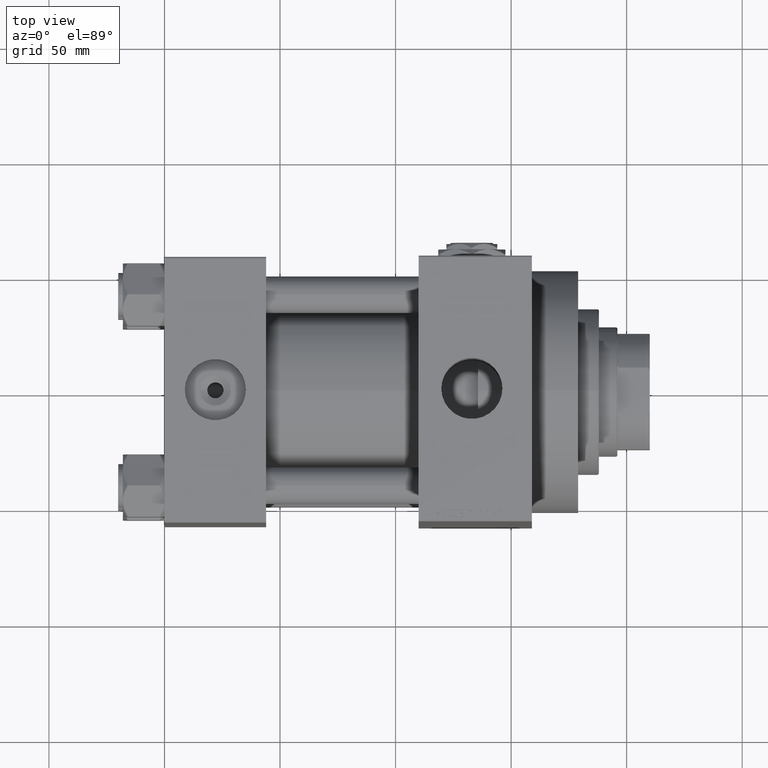
[diagram: clean part render]
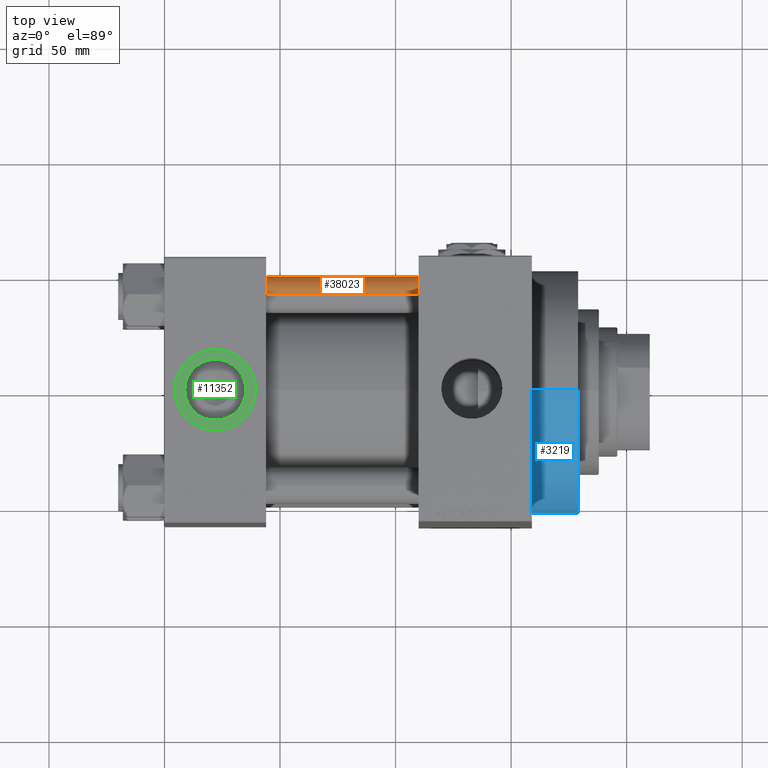
[diagram: same view with three faces highlighted in distinct colors, each labeled with its STEP entity id]
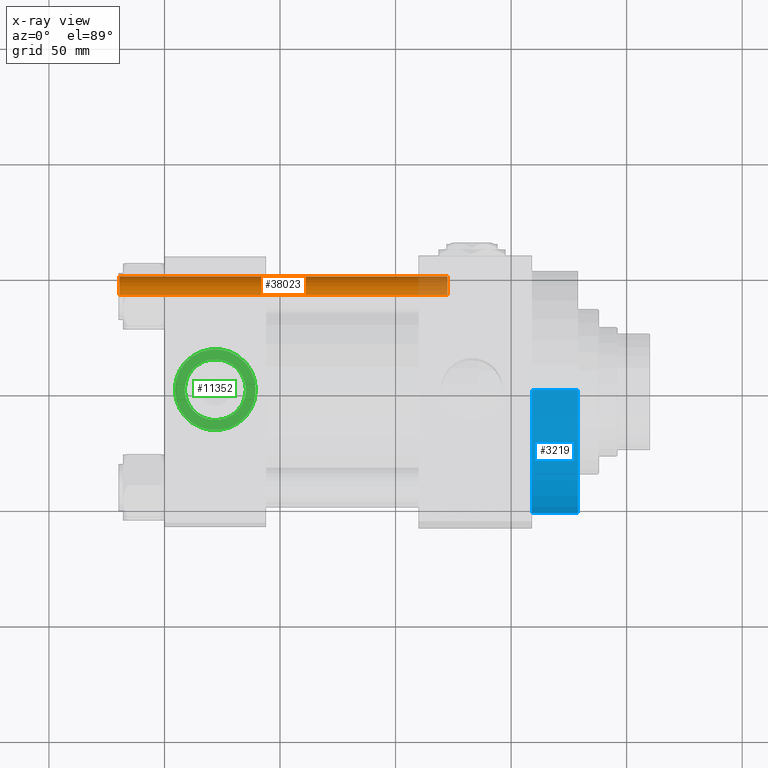
[diagram: x-ray of the same camera — body ghosted, the three highlighted faces saturated]
A machine part, top view with three faces highlighted in distinct colors.
The next image is the same camera in x-ray (body ghosted, the three faces saturated) — at least one of them is partly hidden behind the body in this view.
Their STEP definitions:

[orange] entity #38023 — the highlighted cylindrical surface (edge-blend (fillet) strip) has radius 8 mm, axis along (1, -0, -0).
#85 = AXIS2_PLACEMENT_3D ( 'NONE', #45737, #18984, #11472 ) ;
#875 = ORIENTED_EDGE ( 'NONE', *, *, #41265, .T. ) ;
#1110 = ORIENTED_EDGE ( 'NONE', *, *, #29589, .F. ) ;
#1251 = VECTOR ( 'NONE', #33091, 1000.000000000000000 ) ;
#2561 = CARTESIAN_POINT ( 'NONE',  ( 8.000000000000000000, 9.797174393178825657E-16, 143.0000000000000000 ) ) ;
#4352 = ORIENTED_EDGE ( 'NONE', *, *, #16855, .T. ) ;
#6268 = VERTEX_POINT ( 'NONE', #40698 ) ;
#6355 = FACE_OUTER_BOUND ( 'NONE', #30877, .T. ) ;
#6927 = AXIS2_PLACEMENT_3D ( 'NONE', #20867, #32630, #25639 ) ;
#11472 = DIRECTION ( 'NONE',  ( 1.000000000000000000, 0.000000000000000000, 0.000000000000000000 ) ) ;
#15613 = AXIS2_PLACEMENT_3D ( 'NONE', #44678, #40424, #40925 ) ;
#16855 = EDGE_CURVE ( 'NONE', #6268, #19812, #39194, .T. ) ;
#17117 = CYLINDRICAL_SURFACE ( 'NONE', #6927, 8.000000000000000000 ) ;
#18984 = DIRECTION ( 'NONE',  ( -0.000000000000000000, -0.000000000000000000, 1.000000000000000000 ) ) ;
#19437 = VERTEX_POINT ( 'NONE', #43409 ) ;
#19812 = VERTEX_POINT ( 'NONE', #43220 ) ;
#20867 = CARTESIAN_POINT ( 'NONE',  ( 0.000000000000000000, 0.000000000000000000, 143.0000000000000000 ) ) ;
#21814 = CARTESIAN_POINT ( 'NONE',  ( 8.000000000000000000, 9.797174393178825657E-16, 142.4999999999999716 ) ) ;
#24404 = CIRCLE ( 'NONE', #15613, 8.000000000000000000 ) ;
#25639 = DIRECTION ( 'NONE',  ( -1.000000000000000000, 0.000000000000000000, 0.000000000000000000 ) ) ;
#26784 = DIRECTION ( 'NONE',  ( -0.000000000000000000, -0.000000000000000000, -1.000000000000000000 ) ) ;
#28340 = VECTOR ( 'NONE', #26784, 1000.000000000000000 ) ;
#29589 = EDGE_CURVE ( 'NONE', #19437, #19812, #42750, .T. ) ;
#30488 = VERTEX_POINT ( 'NONE', #21814 ) ;
#30877 = EDGE_LOOP ( 'NONE', ( #875, #36757, #4352, #1110 ) ) ;
#32630 = DIRECTION ( 'NONE',  ( -0.000000000000000000, -0.000000000000000000, -1.000000000000000000 ) ) ;
#33091 = DIRECTION ( 'NONE',  ( -0.000000000000000000, -0.000000000000000000, -1.000000000000000000 ) ) ;
#34523 = CARTESIAN_POINT ( 'NONE',  ( -8.000000000000000000, 0.000000000000000000, 143.0000000000000000 ) ) ;
#36404 = EDGE_CURVE ( 'NONE', #30488, #6268, #48843, .T. ) ;
#36757 = ORIENTED_EDGE ( 'NONE', *, *, #36404, .T. ) ;
#38023 = ADVANCED_FACE ( 'NONE', ( #6355 ), #17117, .T. ) ;
#39194 = CIRCLE ( 'NONE', #85, 8.000000000000000000 ) ;
#40424 = DIRECTION ( 'NONE',  ( 0.000000000000000000, 0.000000000000000000, -1.000000000000000000 ) ) ;
#40698 = CARTESIAN_POINT ( 'NONE',  ( 8.000000000000000000, 9.797174393178825657E-16, 0.4999999999999726885 ) ) ;
#40925 = DIRECTION ( 'NONE',  ( 1.000000000000000000, 0.000000000000000000, 0.000000000000000000 ) ) ;
#41265 = EDGE_CURVE ( 'NONE', #19437, #30488, #24404, .T. ) ;
#42750 = LINE ( 'NONE', #34523, #28340 ) ;
#43220 = CARTESIAN_POINT ( 'NONE',  ( -8.000000000000000000, 0.000000000000000000, 0.4999999999999726885 ) ) ;
#43409 = CARTESIAN_POINT ( 'NONE',  ( -8.000000000000000000, 0.000000000000000000, 142.4999999999999716 ) ) ;
#44678 = CARTESIAN_POINT ( 'NONE',  ( 0.000000000000000000, 0.000000000000000000, 142.4999999999999716 ) ) ;
#45737 = CARTESIAN_POINT ( 'NONE',  ( 0.000000000000000000, 0.000000000000000000, 0.4999999999999726885 ) ) ;
#48843 = LINE ( 'NONE', #2561, #1251 ) ;

[blue] entity #3219 — the highlighted cylindrical surface (partial cylindrical patch) has radius 52.5 mm, axis along (-1, -0, -0).
#1414 = DIRECTION ( 'NONE',  ( 0.000000000000000000, 0.000000000000000000, 1.000000000000000000 ) ) ;
#3219 = ADVANCED_FACE ( 'NONE', ( #17175 ), #9672, .T. ) ;
#3415 = CARTESIAN_POINT ( 'NONE',  ( 179.0000000000000000, 0.000000000000000000, 52.50000000000000000 ) ) ;
#4585 = EDGE_CURVE ( 'NONE', #18927, #6149, #21101, .T. ) ;
#6149 = VERTEX_POINT ( 'NONE', #19936 ) ;
#6199 = LINE ( 'NONE', #29472, #32466 ) ;
#6308 = ORIENTED_EDGE ( 'NONE', *, *, #4585, .T. ) ;
#6488 = ORIENTED_EDGE ( 'NONE', *, *, #26922, .F. ) ;
#8784 = DIRECTION ( 'NONE',  ( -1.000000000000000000, -0.000000000000000000, -0.000000000000000000 ) ) ;
#9672 = CYLINDRICAL_SURFACE ( 'NONE', #31415, 52.50000000000000000 ) ;
#12037 = CARTESIAN_POINT ( 'NONE',  ( 179.0000000000000000, 6.429395695523603956E-15, -52.50000000000000000 ) ) ;
#12476 = VERTEX_POINT ( 'NONE', #12037 ) ;
#17175 = FACE_OUTER_BOUND ( 'NONE', #34362, .T. ) ;
#18693 = DIRECTION ( 'NONE',  ( -1.000000000000000000, -0.000000000000000000, -0.000000000000000000 ) ) ;
#18927 = VERTEX_POINT ( 'NONE', #49014 ) ;
#19936 = CARTESIAN_POINT ( 'NONE',  ( 159.0000000000000000, 6.429395695523603956E-15, -52.50000000000000000 ) ) ;
#20214 = CIRCLE ( 'NONE', #21861, 52.50000000000000000 ) ;
#21041 = CARTESIAN_POINT ( 'NONE',  ( 179.0000000000000000, 6.429395695523603956E-15, -52.50000000000000000 ) ) ;
#21101 = CIRCLE ( 'NONE', #49063, 52.50000000000000000 ) ;
#21824 = VECTOR ( 'NONE', #8784, 1000.000000000000000 ) ;
#21861 = AXIS2_PLACEMENT_3D ( 'NONE', #38137, #42362, #49391 ) ;
#24944 = DIRECTION ( 'NONE',  ( -1.000000000000000000, -0.000000000000000000, -0.000000000000000000 ) ) ;
#25353 = EDGE_CURVE ( 'NONE', #12476, #6149, #35802, .T. ) ;
#26922 = EDGE_CURVE ( 'NONE', #28381, #12476, #20214, .T. ) ;
#27328 = DIRECTION ( 'NONE',  ( 1.000000000000000000, 0.000000000000000000, 0.000000000000000000 ) ) ;
#28381 = VERTEX_POINT ( 'NONE', #3415 ) ;
#29472 = CARTESIAN_POINT ( 'NONE',  ( 179.0000000000000000, 0.000000000000000000, 52.50000000000000000 ) ) ;
#31415 = AXIS2_PLACEMENT_3D ( 'NONE', #32932, #24944, #1414 ) ;
#32466 = VECTOR ( 'NONE', #18693, 1000.000000000000000 ) ;
#32932 = CARTESIAN_POINT ( 'NONE',  ( 179.0000000000000000, 0.000000000000000000, 0.000000000000000000 ) ) ;
#34362 = EDGE_LOOP ( 'NONE', ( #45817, #6488, #39774, #6308 ) ) ;
#35802 = LINE ( 'NONE', #21041, #21824 ) ;
#38137 = CARTESIAN_POINT ( 'NONE',  ( 179.0000000000000000, 0.000000000000000000, 0.000000000000000000 ) ) ;
#39774 = ORIENTED_EDGE ( 'NONE', *, *, #42759, .T. ) ;
#42362 = DIRECTION ( 'NONE',  ( 1.000000000000000000, 0.000000000000000000, 0.000000000000000000 ) ) ;
#42759 = EDGE_CURVE ( 'NONE', #28381, #18927, #6199, .T. ) ;
#42813 = DIRECTION ( 'NONE',  ( 0.000000000000000000, 0.000000000000000000, -1.000000000000000000 ) ) ;
#45817 = ORIENTED_EDGE ( 'NONE', *, *, #25353, .F. ) ;
#47562 = CARTESIAN_POINT ( 'NONE',  ( 159.0000000000000000, 0.000000000000000000, 0.000000000000000000 ) ) ;
#49014 = CARTESIAN_POINT ( 'NONE',  ( 159.0000000000000000, 0.000000000000000000, 52.50000000000000000 ) ) ;
#49063 = AXIS2_PLACEMENT_3D ( 'NONE', #47562, #27328, #42813 ) ;
#49391 = DIRECTION ( 'NONE',  ( 0.000000000000000000, 0.000000000000000000, -1.000000000000000000 ) ) ;

[green] entity #11352 — the highlighted planar face has unit normal (0, 0, 1).
#129 = DIRECTION ( 'NONE',  ( 0.000000000000000000, 0.000000000000000000, 1.000000000000000000 ) ) ;
#840 = AXIS2_PLACEMENT_3D ( 'NONE', #22501, #3229, #37747 ) ;
#2174 = AXIS2_PLACEMENT_3D ( 'NONE', #30899, #129, #34886 ) ;
#3229 = DIRECTION ( 'NONE',  ( 0.000000000000000000, 0.000000000000000000, 1.000000000000000000 ) ) ;
#5906 = EDGE_LOOP ( 'NONE', ( #27152, #46401 ) ) ;
#6186 = ORIENTED_EDGE ( 'NONE', *, *, #33577, .T. ) ;
#6339 = DIRECTION ( 'NONE',  ( 1.000000000000000000, 0.000000000000000000, 0.000000000000000000 ) ) ;
#7383 = FACE_BOUND ( 'NONE', #5906, .T. ) ;
#7870 = FACE_OUTER_BOUND ( 'NONE', #18284, .T. ) ;
#11352 = ADVANCED_FACE ( 'NONE', ( #7383, #7870 ), #15153, .T. ) ;
#11608 = CIRCLE ( 'NONE', #49137, 17.50000000000000000 ) ;
#12990 = DIRECTION ( 'NONE',  ( 0.000000000000000000, 0.000000000000000000, 1.000000000000000000 ) ) ;
#13497 = CARTESIAN_POINT ( 'NONE',  ( 22.00000000000000000, -1.214306433183765124E-14, 57.30000000000001137 ) ) ;
#13655 = DIRECTION ( 'NONE',  ( 1.000000000000000000, 0.000000000000000000, 0.000000000000000000 ) ) ;
#15153 = PLANE ( 'NONE',  #2174 ) ;
#15668 = CARTESIAN_POINT ( 'NONE',  ( 39.50000000000000000, -1.214306433183765124E-14, 57.30000000000001137 ) ) ;
#16849 = CIRCLE ( 'NONE', #840, 13.22000000000000242 ) ;
#16913 = EDGE_CURVE ( 'NONE', #21437, #17340, #16849, .T. ) ;
#17340 = VERTEX_POINT ( 'NONE', #21574 ) ;
#17719 = CARTESIAN_POINT ( 'NONE',  ( 4.499999999999997335, -9.999932433329782990E-15, 57.30000000000001137 ) ) ;
#17847 = CARTESIAN_POINT ( 'NONE',  ( 22.00000000000000000, -1.214306433183765124E-14, 57.30000000000001137 ) ) ;
#18284 = EDGE_LOOP ( 'NONE', ( #45101, #6186 ) ) ;
#20106 = CARTESIAN_POINT ( 'NONE',  ( 8.779999999999994031, -1.052408126336485088E-14, 57.30000000000001137 ) ) ;
#21159 = DIRECTION ( 'NONE',  ( 0.000000000000000000, 0.000000000000000000, 1.000000000000000000 ) ) ;
#21437 = VERTEX_POINT ( 'NONE', #20106 ) ;
#21574 = CARTESIAN_POINT ( 'NONE',  ( 35.21999999999999886, -1.214306433183765124E-14, 57.30000000000001137 ) ) ;
#22501 = CARTESIAN_POINT ( 'NONE',  ( 22.00000000000000000, -1.214306433183765124E-14, 57.30000000000001137 ) ) ;
#22869 = AXIS2_PLACEMENT_3D ( 'NONE', #13497, #12990, #47510 ) ;
#27152 = ORIENTED_EDGE ( 'NONE', *, *, #32034, .F. ) ;
#30899 = CARTESIAN_POINT ( 'NONE',  ( 22.00000000000000000, -1.214306433183765124E-14, 57.30000000000001137 ) ) ;
#32034 = EDGE_CURVE ( 'NONE', #17340, #21437, #47586, .T. ) ;
#33577 = EDGE_CURVE ( 'NONE', #36888, #34785, #35617, .T. ) ;
#34030 = AXIS2_PLACEMENT_3D ( 'NONE', #17847, #47864, #6339 ) ;
#34785 = VERTEX_POINT ( 'NONE', #15668 ) ;
#34886 = DIRECTION ( 'NONE',  ( 1.000000000000000000, 0.000000000000000000, -0.000000000000000000 ) ) ;
#35617 = CIRCLE ( 'NONE', #22869, 17.50000000000000000 ) ;
#36888 = VERTEX_POINT ( 'NONE', #17719 ) ;
#36915 = CARTESIAN_POINT ( 'NONE',  ( 22.00000000000000000, -1.214306433183765124E-14, 57.30000000000001137 ) ) ;
#37747 = DIRECTION ( 'NONE',  ( 1.000000000000000000, 0.000000000000000000, 0.000000000000000000 ) ) ;
#40340 = EDGE_CURVE ( 'NONE', #34785, #36888, #11608, .T. ) ;
#45101 = ORIENTED_EDGE ( 'NONE', *, *, #40340, .T. ) ;
#46401 = ORIENTED_EDGE ( 'NONE', *, *, #16913, .F. ) ;
#47510 = DIRECTION ( 'NONE',  ( 1.000000000000000000, 0.000000000000000000, 0.000000000000000000 ) ) ;
#47586 = CIRCLE ( 'NONE', #34030, 13.22000000000000242 ) ;
#47864 = DIRECTION ( 'NONE',  ( 0.000000000000000000, 0.000000000000000000, 1.000000000000000000 ) ) ;
#49137 = AXIS2_PLACEMENT_3D ( 'NONE', #36915, #21159, #13655 ) ;